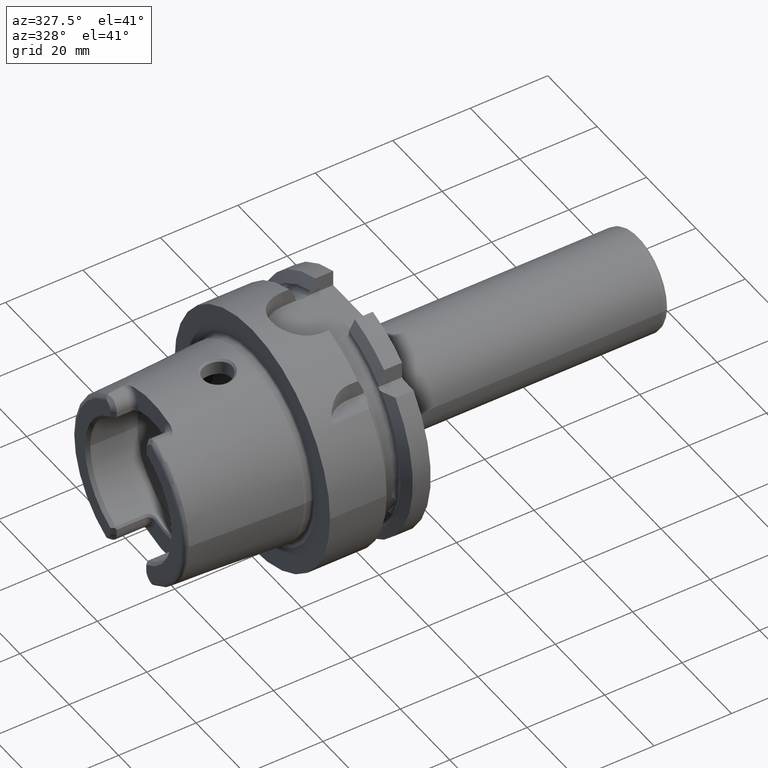
[diagram: clean part render]
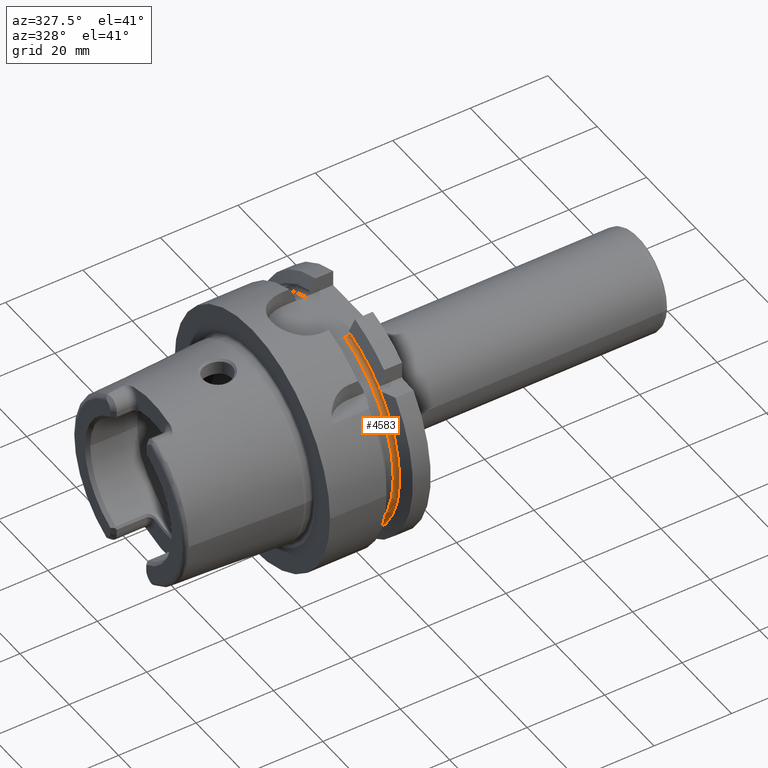
[diagram: same view with one face highlighted and labeled with its STEP entity id]
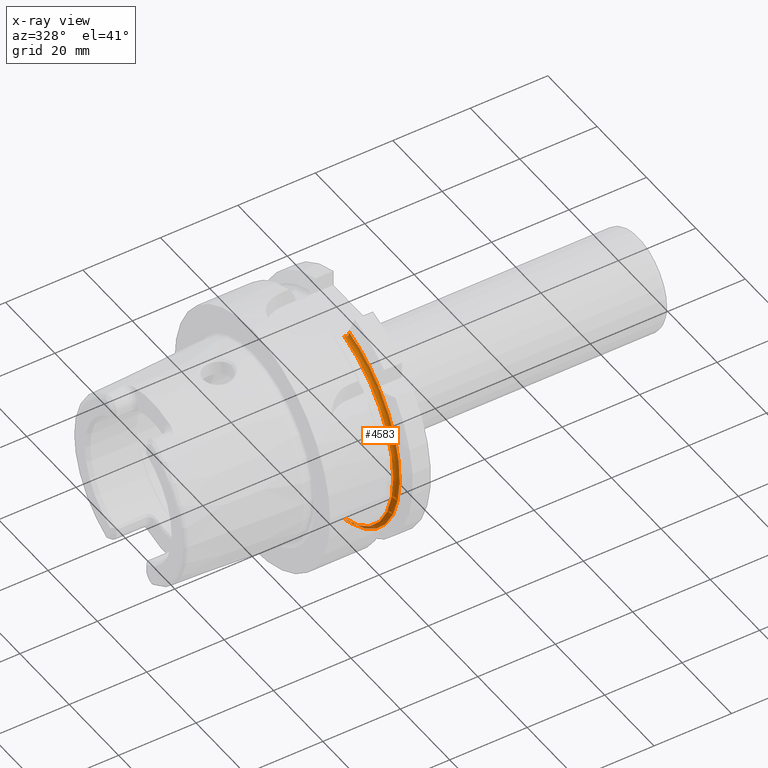
[diagram: x-ray of the same camera — body ghosted, the highlighted face saturated]
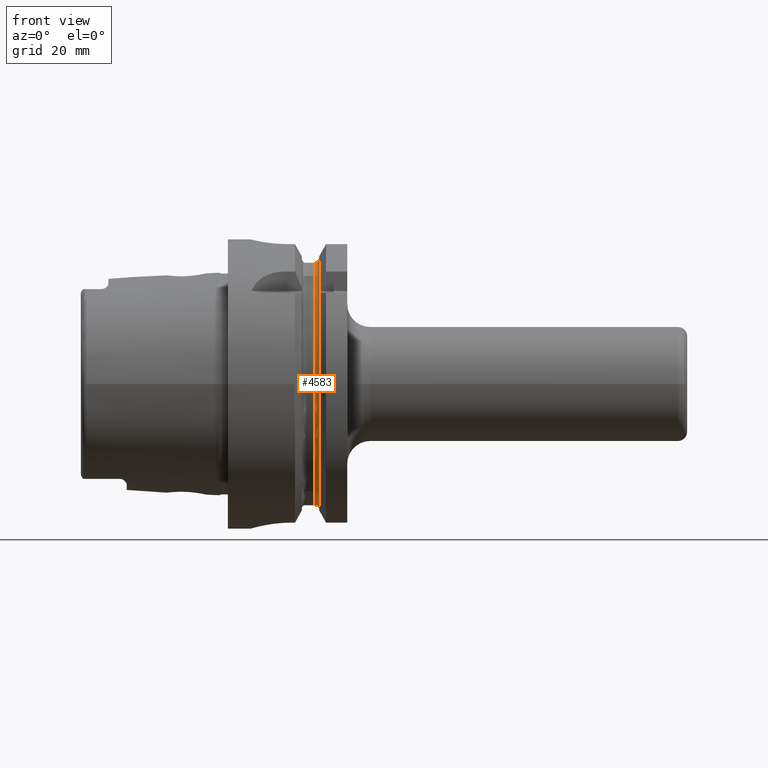
[diagram: same view with one face highlighted and labeled with its STEP entity id]
A machine part, auxiliary view. The second image highlights one B-rep face of the part: STEP entity #4583.
The next image is the same camera in x-ray: the body ghosted, the highlighted face saturated — about 4% of this face is hidden behind the body in this view.
A second angle (front view) of the same face is appended — the face is thin or edge-on in the first view.
In plain terms, the highlighted toroidal blend (fillet) surface has major radius 28.5 mm and minor (blend) radius 1 mm.
Its self-contained STEP definition (entity closure, byte-faithful):
#1395=CARTESIAN_POINT('',(1.986463473472E1,-1.985E1,2.025E1));
#1396=CARTESIAN_POINT('',(1.986804449499E1,-1.985E1,2.028290393522E1));
#1397=CARTESIAN_POINT('',(1.987321999647E1,-1.985E1,2.034923780980E1));
#1398=CARTESIAN_POINT('',(1.9875E1,-1.985E1,2.041664264257E1));
#1399=CARTESIAN_POINT('',(1.9875E1,-1.985E1,2.045061123781E1));
#1401=CARTESIAN_POINT('',(1.9875E1,-2.045061123781E1,1.985E1));
#1402=CARTESIAN_POINT('',(1.9875E1,-2.041669207536E1,1.985E1));
#1403=CARTESIAN_POINT('',(1.987322515853E1,-2.034933680250E1,1.985E1));
#1404=CARTESIAN_POINT('',(1.986804959014E1,-2.028295310305E1,1.985E1));
#1405=CARTESIAN_POINT('',(1.986463473472E1,-2.025E1,1.985E1));
#1407=CARTESIAN_POINT('',(1.9875E1,0.E0,0.E0));
#1408=DIRECTION('',(1.E0,0.E0,0.E0));
#1409=DIRECTION('',(0.E0,-7.175653065898E-1,6.964912280702E-1));
#1410=AXIS2_PLACEMENT_3D('',#1407,#1408,#1409);
#1412=CARTESIAN_POINT('',(1.984968305988E1,-9.0175E0,-2.68E1));
#1413=CARTESIAN_POINT('',(1.985814676224E1,-9.0175E0,-2.683892771878E1));
#1414=CARTESIAN_POINT('',(1.987076565233E1,-9.0175E0,-2.691716995960E1));
#1415=CARTESIAN_POINT('',(1.9875E1,-9.0175E0,-2.699613588124E1));
#1416=CARTESIAN_POINT('',(1.9875E1,-9.0175E0,-2.703580392276E1));
#1418=CARTESIAN_POINT('',(1.8875E1,-7.7E0,-2.64E1));
#1419=CARTESIAN_POINT('',(1.890473731311E1,-7.7E0,-2.64E1));
#1420=CARTESIAN_POINT('',(1.896439553552E1,-7.709074097953E0,-2.64E1));
#1421=CARTESIAN_POINT('',(1.905895356645E1,-7.755593365771E0,-2.64E1));
#1422=CARTESIAN_POINT('',(1.914506350406E1,-7.827325160610E0,-2.64E1));
#1423=CARTESIAN_POINT('',(1.922569730521E1,-7.919730067314E0,-2.64E1));
#1424=CARTESIAN_POINT('',(1.930098420168E1,-8.029803274102E0,-2.64E1));
#1425=CARTESIAN_POINT('',(1.937115269578E1,-8.154449512708E0,-2.64E1));
#1426=CARTESIAN_POINT('',(1.943699388158E1,-8.292566470765E0,-2.64E1));
#1427=CARTESIAN_POINT('',(1.949974575456E1,-8.445548604297E0,-2.64E1));
#1428=CARTESIAN_POINT('',(1.953984256144E1,-8.558412255131E0,-2.64E1));
#1429=CARTESIAN_POINT('',(1.955937686474E1,-8.6175E0,-2.64E1));
#1431=CARTESIAN_POINT('',(1.8875E1,0.E0,0.E0));
#1432=DIRECTION('',(-1.E0,0.E0,0.E0));
#1433=DIRECTION('',(0.E0,-2.8E-1,-9.6E-1));
#1434=AXIS2_PLACEMENT_3D('',#1431,#1432,#1433);
#1436=CARTESIAN_POINT('',(1.929088689054E1,-8.0175E0,2.64E1));
#1437=CARTESIAN_POINT('',(1.927417922618E1,-7.991206394948E0,2.64E1));
#1438=CARTESIAN_POINT('',(1.923922993687E1,-7.939709103662E0,2.64E1));
#1439=CARTESIAN_POINT('',(1.917963781936E1,-7.865495822527E0,2.64E1));
#1440=CARTESIAN_POINT('',(1.911354741171E1,-7.799456458601E0,2.64E1));
#1441=CARTESIAN_POINT('',(1.903907332419E1,-7.744292367168E0,2.64E1));
#1442=CARTESIAN_POINT('',(1.895500739860E1,-7.707298016794E0,2.64E1));
#1443=CARTESIAN_POINT('',(1.890171865616E1,-7.7E0,2.64E1));
#1444=CARTESIAN_POINT('',(1.8875E1,-7.7E0,2.64E1));
#1446=CARTESIAN_POINT('',(1.9875E1,-8.0175E0,2.734903460362E1));
#1447=CARTESIAN_POINT('',(1.9875E1,-8.0175E0,2.728117257592E1));
#1448=CARTESIAN_POINT('',(1.986265408780E1,-8.0175E0,2.714852340969E1));
#1449=CARTESIAN_POINT('',(1.980690666168E1,-8.0175E0,2.695352660694E1));
#1450=CARTESIAN_POINT('',(1.971903352831E1,-8.0175E0,2.677824571286E1));
#1451=CARTESIAN_POINT('',(1.960014677433E1,-8.0175E0,2.662135571433E1));
#1452=CARTESIAN_POINT('',(1.945423725332E1,-8.0175E0,2.649098268241E1));
#1453=CARTESIAN_POINT('',(1.934732588511E1,-8.0175E0,2.642697420806E1));
#1454=CARTESIAN_POINT('',(1.929088689054E1,-8.0175E0,2.64E1));
#1456=CARTESIAN_POINT('',(1.9875E1,0.E0,0.E0));
#1457=DIRECTION('',(1.E0,0.E0,0.E0));
#1458=DIRECTION('',(0.E0,-2.813157894737E-1,9.596152492498E-1));
#1459=AXIS2_PLACEMENT_3D('',#1456,#1457,#1458);
#1731=CARTESIAN_POINT('',(1.986463473472E1,-2.025E1,1.985E1));
#1732=CARTESIAN_POINT('',(1.986449652312E1,-2.018247983455E1,1.991752016545E1));
#1733=CARTESIAN_POINT('',(1.986435975892E1,-2.004829299846E1,2.005170700154E1));
#1734=CARTESIAN_POINT('',(1.986450001729E1,-1.991581316931E1,2.018418683069E1));
#1735=CARTESIAN_POINT('',(1.986463473472E1,-1.985E1,2.025E1));
#1861=CARTESIAN_POINT('',(1.955937686474E1,-8.6175E0,-2.64E1));
#1862=CARTESIAN_POINT('',(1.960607068128E1,-8.652258018991E0,
-2.643475801899E1));
#1863=CARTESIAN_POINT('',(1.969044508560E1,-8.727925833445E0,
-2.651042583344E1));
#1864=CARTESIAN_POINT('',(1.979169962947E1,-8.865507253673E0,
-2.664800725367E1));
#1865=CARTESIAN_POINT('',(1.983443382896E1,-8.965020941285E0,
-2.674752094129E1));
#1866=CARTESIAN_POINT('',(1.984968305988E1,-9.0175E0,-2.68E1));
#2925=CARTESIAN_POINT('',(1.955937686474E1,-8.6175E0,-2.64E1));
#2926=VERTEX_POINT('',#2925);
#2927=CARTESIAN_POINT('',(1.984968305988E1,-9.0175E0,-2.68E1));
#2928=VERTEX_POINT('',#2927);
#2937=VERTEX_POINT('',#1731);
#2938=VERTEX_POINT('',#1735);
#2957=CARTESIAN_POINT('',(1.929088689054E1,-8.0175E0,2.64E1));
#2959=VERTEX_POINT('',#2957);
#2981=CARTESIAN_POINT('',(1.8875E1,-7.7E0,2.64E1));
#2982=VERTEX_POINT('',#2981);
#2983=VERTEX_POINT('',#1446);
#3004=CARTESIAN_POINT('',(1.8875E1,-7.7E0,-2.64E1));
#3006=VERTEX_POINT('',#3004);
#3016=CARTESIAN_POINT('',(1.9875E1,-9.0175E0,-2.703580392276E1));
#3018=VERTEX_POINT('',#3016);
#3044=CARTESIAN_POINT('',(1.9875E1,-2.045061123781E1,1.985E1));
#3046=VERTEX_POINT('',#3044);
#3048=CARTESIAN_POINT('',(1.9875E1,-1.985E1,2.045061123781E1));
#3050=VERTEX_POINT('',#3048);
#4554=CARTESIAN_POINT('',(1.8875E1,0.E0,0.E0));
#4555=DIRECTION('',(1.E0,0.E0,0.E0));
#4556=DIRECTION('',(0.E0,-1.E0,0.E0));
#4557=AXIS2_PLACEMENT_3D('',#4554,#4555,#4556);
#4558=TOROIDAL_SURFACE('',#4557,2.85E1,1.E0);
#4560=ORIENTED_EDGE('',*,*,#4559,.F.);
#4562=ORIENTED_EDGE('',*,*,#4561,.F.);
#4564=ORIENTED_EDGE('',*,*,#4563,.F.);
#4566=ORIENTED_EDGE('',*,*,#4565,.T.);
#4568=ORIENTED_EDGE('',*,*,#4567,.F.);
#4570=ORIENTED_EDGE('',*,*,#4569,.F.);
#4572=ORIENTED_EDGE('',*,*,#4571,.F.);
#4574=ORIENTED_EDGE('',*,*,#4573,.T.);
#4576=ORIENTED_EDGE('',*,*,#4575,.F.);
#4578=ORIENTED_EDGE('',*,*,#4577,.F.);
#4580=ORIENTED_EDGE('',*,*,#4579,.T.);
#4581=EDGE_LOOP('',(#4560,#4562,#4564,#4566,#4568,#4570,#4572,#4574,#4576,#4578,
#4580));
#4582=FACE_OUTER_BOUND('',#4581,.F.);
#4583=ADVANCED_FACE('',(#4582),#4558,.F.);
#1400=B_SPLINE_CURVE_WITH_KNOTS('',3,(#1395,#1396,#1397,#1398,#1399),
.UNSPECIFIED.,.F.,.F.,(4,1,4),(0.E0,5.E-1,1.E0),.UNSPECIFIED.);
#1406=B_SPLINE_CURVE_WITH_KNOTS('',3,(#1401,#1402,#1403,#1404,#1405),
.UNSPECIFIED.,.F.,.F.,(4,1,4),(0.E0,5.E-1,1.E0),.UNSPECIFIED.);
#1411=CIRCLE('',#1410,2.85E1);
#1417=B_SPLINE_CURVE_WITH_KNOTS('',3,(#1412,#1413,#1414,#1415,#1416),
.UNSPECIFIED.,.F.,.F.,(4,1,4),(0.E0,5.E-1,1.E0),.UNSPECIFIED.);
#1430=B_SPLINE_CURVE_WITH_KNOTS('',3,(#1418,#1419,#1420,#1421,#1422,#1423,#1424,
#1425,#1426,#1427,#1428,#1429),.UNSPECIFIED.,.F.,.F.,(4,1,1,1,1,1,1,1,1,4),
(0.E0,1.111111111111E-1,2.222222222222E-1,3.333333333333E-1,4.444444444444E-1,
5.555555555556E-1,6.666666666667E-1,7.777777777778E-1,8.888888888889E-1,1.E0),
.UNSPECIFIED.);
#1435=CIRCLE('',#1434,2.75E1);
#1445=B_SPLINE_CURVE_WITH_KNOTS('',3,(#1436,#1437,#1438,#1439,#1440,#1441,#1442,
#1443,#1444),.UNSPECIFIED.,.F.,.F.,(4,1,1,1,1,1,4),(0.E0,1.666666666667E-1,
3.333333333333E-1,5.E-1,6.666666666667E-1,8.333333333333E-1,1.E0),
.UNSPECIFIED.);
#1455=B_SPLINE_CURVE_WITH_KNOTS('',3,(#1446,#1447,#1448,#1449,#1450,#1451,#1452,
#1453,#1454),.UNSPECIFIED.,.F.,.F.,(4,1,1,1,1,1,4),(0.E0,1.666666666667E-1,
3.333333333333E-1,5.E-1,6.666666666667E-1,8.333333333333E-1,1.E0),
.UNSPECIFIED.);
#1460=CIRCLE('',#1459,2.85E1);
#1736=B_SPLINE_CURVE_WITH_KNOTS('',3,(#1731,#1732,#1733,#1734,#1735),
.UNSPECIFIED.,.F.,.F.,(4,1,4),(0.E0,5.E-1,1.E0),.UNSPECIFIED.);
#1867=B_SPLINE_CURVE_WITH_KNOTS('',3,(#1861,#1862,#1863,#1864,#1865,#1866),
.UNSPECIFIED.,.F.,.F.,(4,1,1,4),(0.E0,3.333333333333E-1,6.666666666667E-1,1.E0),
.UNSPECIFIED.);
#4559=EDGE_CURVE('',#2938,#3050,#1400,.T.);
#4561=EDGE_CURVE('',#2937,#2938,#1736,.T.);
#4563=EDGE_CURVE('',#3046,#2937,#1406,.T.);
#4565=EDGE_CURVE('',#3046,#3018,#1411,.T.);
#4567=EDGE_CURVE('',#2928,#3018,#1417,.T.);
#4569=EDGE_CURVE('',#2926,#2928,#1867,.T.);
#4571=EDGE_CURVE('',#3006,#2926,#1430,.T.);
#4573=EDGE_CURVE('',#3006,#2982,#1435,.T.);
#4575=EDGE_CURVE('',#2959,#2982,#1445,.T.);
#4577=EDGE_CURVE('',#2983,#2959,#1455,.T.);
#4579=EDGE_CURVE('',#2983,#3050,#1460,.T.);